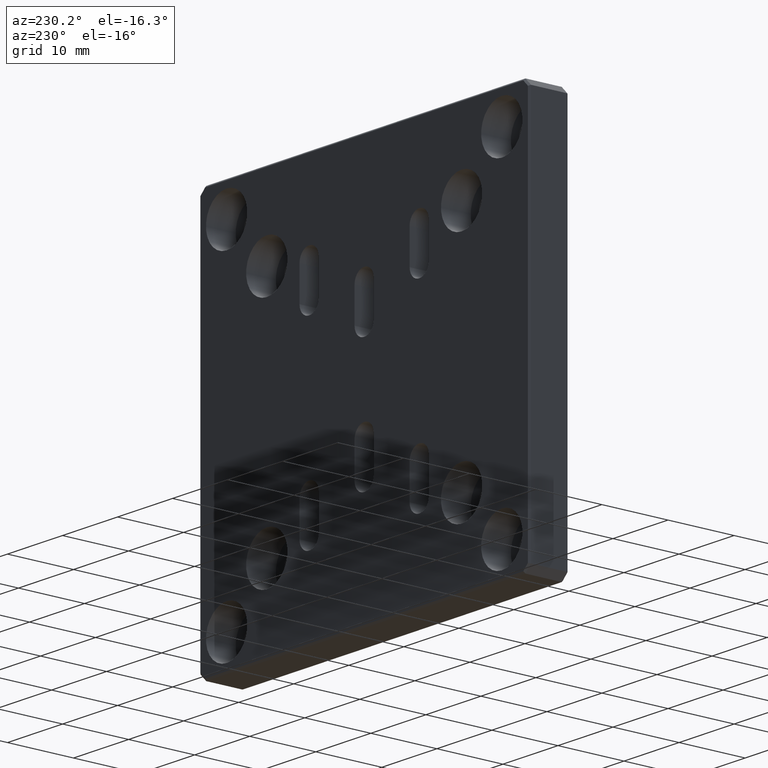
[diagram: clean part render]
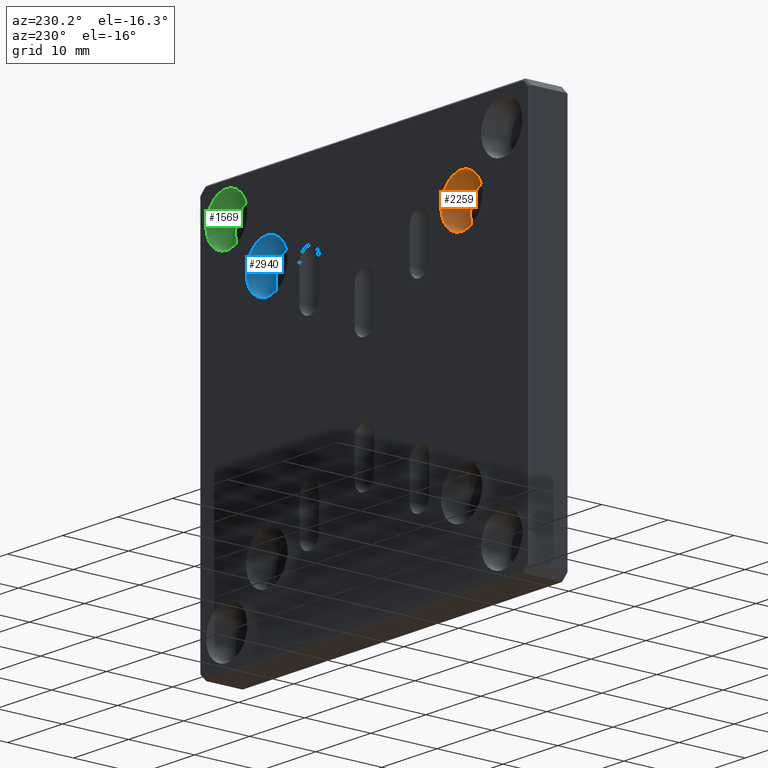
[diagram: same view with three faces highlighted in distinct colors, each labeled with its STEP entity id]
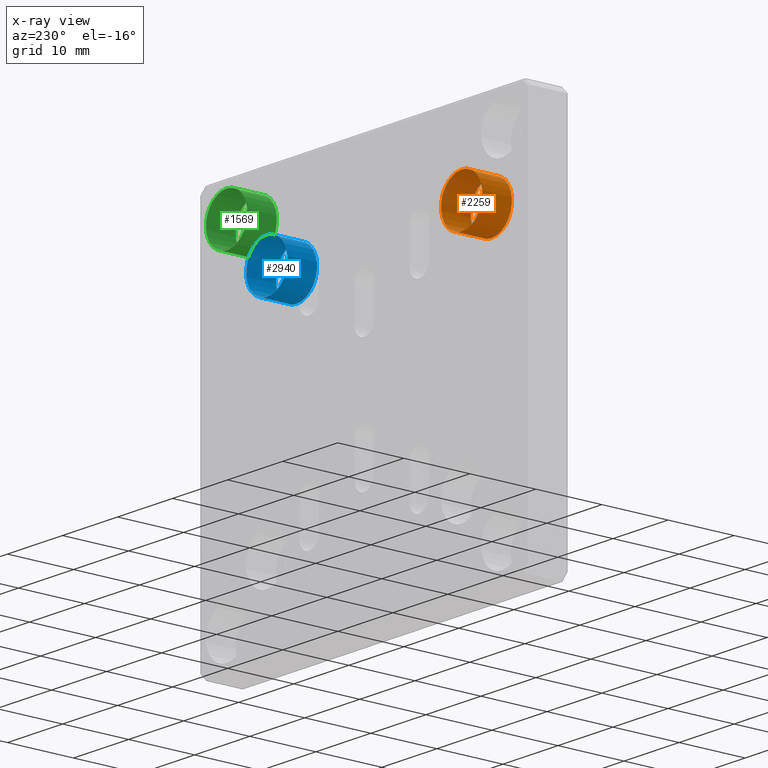
[diagram: x-ray of the same camera — body ghosted, the three highlighted faces saturated]
A machine part, auxiliary view with three faces highlighted in distinct colors.
The next image is the same camera in x-ray (body ghosted, the three faces saturated) — at least one of them is partly hidden behind the body in this view.
Their STEP definitions:

[orange] entity #2259 — the highlighted cylindrical surface (bore or boss wall) has radius 3.75 mm, axis along (-0, 1, -0).
#283 = AXIS2_PLACEMENT_3D ( 'NONE', #1457, #499, #1441 ) ;
#306 = DIRECTION ( 'NONE',  ( 0.000000000000000000, 0.000000000000000000, 1.000000000000000000 ) ) ;
#310 = ORIENTED_EDGE ( 'NONE', *, *, #1570, .T. ) ;
#421 = EDGE_LOOP ( 'NONE', ( #3015 ) ) ;
#499 = DIRECTION ( 'NONE',  ( -0.000000000000000000, 1.000000000000000000, -0.000000000000000000 ) ) ;
#537 = CARTESIAN_POINT ( 'NONE',  ( -17.70000000000000639, 1.499999999999999556, 17.70000000000000639 ) ) ;
#670 = CIRCLE ( 'NONE', #765, 3.750000000000003553 ) ;
#749 = CARTESIAN_POINT ( 'NONE',  ( -17.70000000000000639, 6.000000000000003553, 17.70000000000000639 ) ) ;
#765 = AXIS2_PLACEMENT_3D ( 'NONE', #749, #1935, #1225 ) ;
#965 = VERTEX_POINT ( 'NONE', #2363 ) ;
#1225 = DIRECTION ( 'NONE',  ( 0.000000000000000000, 0.000000000000000000, 1.000000000000000000 ) ) ;
#1441 = DIRECTION ( 'NONE',  ( 0.000000000000000000, 0.000000000000000000, 1.000000000000000000 ) ) ;
#1457 = CARTESIAN_POINT ( 'NONE',  ( -17.70000000000000639, 6.000000000000000000, 17.70000000000000639 ) ) ;
#1460 = AXIS2_PLACEMENT_3D ( 'NONE', #537, #1467, #306 ) ;
#1467 = DIRECTION ( 'NONE',  ( -0.000000000000000000, 1.000000000000000000, -0.000000000000000000 ) ) ;
#1570 = EDGE_CURVE ( 'NONE', #2625, #2625, #670, .T. ) ;
#1584 = EDGE_CURVE ( 'NONE', #965, #965, #1740, .T. ) ;
#1651 = FACE_OUTER_BOUND ( 'NONE', #421, .T. ) ;
#1740 = CIRCLE ( 'NONE', #1460, 3.750000000000003553 ) ;
#1935 = DIRECTION ( 'NONE',  ( -0.000000000000000000, 1.000000000000000000, -0.000000000000000000 ) ) ;
#2142 = CYLINDRICAL_SURFACE ( 'NONE', #283, 3.750000000000003553 ) ;
#2249 = EDGE_LOOP ( 'NONE', ( #310 ) ) ;
#2259 = ADVANCED_FACE ( 'NONE', ( #1651, #2575 ), #2142, .F. ) ;
#2363 = CARTESIAN_POINT ( 'NONE',  ( -17.70000000000000639, 1.499999999999999556, 21.45000000000000995 ) ) ;
#2575 = FACE_OUTER_BOUND ( 'NONE', #2249, .T. ) ;
#2625 = VERTEX_POINT ( 'NONE', #2867 ) ;
#2867 = CARTESIAN_POINT ( 'NONE',  ( -17.70000000000000639, 6.000000000000003553, 21.45000000000000995 ) ) ;
#3015 = ORIENTED_EDGE ( 'NONE', *, *, #1584, .F. ) ;

[blue] entity #2940 — the highlighted cylindrical surface (bore or boss wall) has radius 3.75 mm, axis along (-0, 1, -0).
#2 = VERTEX_POINT ( 'NONE', #2156 ) ;
#221 = ORIENTED_EDGE ( 'NONE', *, *, #2400, .F. ) ;
#581 = DIRECTION ( 'NONE',  ( -0.000000000000000000, 1.000000000000000000, -0.000000000000000000 ) ) ;
#709 = CARTESIAN_POINT ( 'NONE',  ( 17.69999999999999218, 6.000000000000003553, 17.70000000000000639 ) ) ;
#719 = VERTEX_POINT ( 'NONE', #2393 ) ;
#902 = DIRECTION ( 'NONE',  ( 0.000000000000000000, 0.000000000000000000, 1.000000000000000000 ) ) ;
#942 = ORIENTED_EDGE ( 'NONE', *, *, #1455, .T. ) ;
#1141 = CYLINDRICAL_SURFACE ( 'NONE', #2330, 3.750000000000003553 ) ;
#1280 = EDGE_LOOP ( 'NONE', ( #942 ) ) ;
#1455 = EDGE_CURVE ( 'NONE', #719, #719, #2929, .T. ) ;
#1605 = AXIS2_PLACEMENT_3D ( 'NONE', #709, #2614, #2355 ) ;
#1811 = DIRECTION ( 'NONE',  ( -0.000000000000000000, 1.000000000000000000, -0.000000000000000000 ) ) ;
#2026 = DIRECTION ( 'NONE',  ( 0.000000000000000000, 0.000000000000000000, 1.000000000000000000 ) ) ;
#2156 = CARTESIAN_POINT ( 'NONE',  ( 17.69999999999999218, 1.499999999999999556, 21.45000000000000995 ) ) ;
#2209 = EDGE_LOOP ( 'NONE', ( #221 ) ) ;
#2242 = AXIS2_PLACEMENT_3D ( 'NONE', #2456, #581, #2026 ) ;
#2285 = CARTESIAN_POINT ( 'NONE',  ( 17.69999999999999218, 6.000000000000000000, 17.70000000000000639 ) ) ;
#2302 = FACE_OUTER_BOUND ( 'NONE', #2209, .T. ) ;
#2330 = AXIS2_PLACEMENT_3D ( 'NONE', #2285, #1811, #902 ) ;
#2355 = DIRECTION ( 'NONE',  ( 0.000000000000000000, 0.000000000000000000, 1.000000000000000000 ) ) ;
#2393 = CARTESIAN_POINT ( 'NONE',  ( 17.69999999999999218, 6.000000000000003553, 21.45000000000000995 ) ) ;
#2400 = EDGE_CURVE ( 'NONE', #2, #2, #2546, .T. ) ;
#2456 = CARTESIAN_POINT ( 'NONE',  ( 17.69999999999999218, 1.499999999999999556, 17.70000000000000639 ) ) ;
#2546 = CIRCLE ( 'NONE', #2242, 3.750000000000003553 ) ;
#2614 = DIRECTION ( 'NONE',  ( -0.000000000000000000, 1.000000000000000000, -0.000000000000000000 ) ) ;
#2929 = CIRCLE ( 'NONE', #1605, 3.750000000000003553 ) ;
#2940 = ADVANCED_FACE ( 'NONE', ( #2302, #2989 ), #1141, .F. ) ;
#2989 = FACE_OUTER_BOUND ( 'NONE', #1280, .T. ) ;

[green] entity #1569 — the highlighted cylindrical surface (bore or boss wall) has radius 3.75 mm, axis along (-0, 1, -0).
#17 = CARTESIAN_POINT ( 'NONE',  ( 24.99999999999997868, 1.499999999999999556, 28.75000000000003908 ) ) ;
#181 = EDGE_CURVE ( 'NONE', #2886, #2886, #1048, .T. ) ;
#413 = DIRECTION ( 'NONE',  ( 0.000000000000000000, 0.000000000000000000, 1.000000000000000000 ) ) ;
#519 = AXIS2_PLACEMENT_3D ( 'NONE', #3027, #2339, #880 ) ;
#628 = CARTESIAN_POINT ( 'NONE',  ( 24.99999999999997868, 6.000000000000003553, 25.00000000000003908 ) ) ;
#855 = ORIENTED_EDGE ( 'NONE', *, *, #181, .T. ) ;
#880 = DIRECTION ( 'NONE',  ( 0.000000000000000000, 0.000000000000000000, 1.000000000000000000 ) ) ;
#1000 = AXIS2_PLACEMENT_3D ( 'NONE', #628, #1551, #413 ) ;
#1048 = CIRCLE ( 'NONE', #1000, 3.750000000000003553 ) ;
#1238 = CARTESIAN_POINT ( 'NONE',  ( 24.99999999999997868, 6.000000000000000000, 25.00000000000003908 ) ) ;
#1368 = EDGE_CURVE ( 'NONE', #2639, #2639, #2182, .T. ) ;
#1450 = FACE_OUTER_BOUND ( 'NONE', #2121, .T. ) ;
#1551 = DIRECTION ( 'NONE',  ( -0.000000000000000000, 1.000000000000000000, -0.000000000000000000 ) ) ;
#1569 = ADVANCED_FACE ( 'NONE', ( #1450, #2875 ), #1662, .F. ) ;
#1576 = EDGE_LOOP ( 'NONE', ( #855 ) ) ;
#1662 = CYLINDRICAL_SURFACE ( 'NONE', #2047, 3.750000000000000000 ) ;
#1918 = CARTESIAN_POINT ( 'NONE',  ( 24.99999999999997868, 6.000000000000003553, 28.75000000000004263 ) ) ;
#2047 = AXIS2_PLACEMENT_3D ( 'NONE', #1238, #2603, #2369 ) ;
#2121 = EDGE_LOOP ( 'NONE', ( #2615 ) ) ;
#2182 = CIRCLE ( 'NONE', #519, 3.750000000000000000 ) ;
#2339 = DIRECTION ( 'NONE',  ( -0.000000000000000000, 1.000000000000000000, -0.000000000000000000 ) ) ;
#2369 = DIRECTION ( 'NONE',  ( 0.000000000000000000, 0.000000000000000000, 1.000000000000000000 ) ) ;
#2603 = DIRECTION ( 'NONE',  ( -0.000000000000000000, 1.000000000000000000, -0.000000000000000000 ) ) ;
#2615 = ORIENTED_EDGE ( 'NONE', *, *, #1368, .F. ) ;
#2639 = VERTEX_POINT ( 'NONE', #17 ) ;
#2875 = FACE_OUTER_BOUND ( 'NONE', #1576, .T. ) ;
#2886 = VERTEX_POINT ( 'NONE', #1918 ) ;
#3027 = CARTESIAN_POINT ( 'NONE',  ( 24.99999999999997868, 1.499999999999999556, 25.00000000000003908 ) ) ;